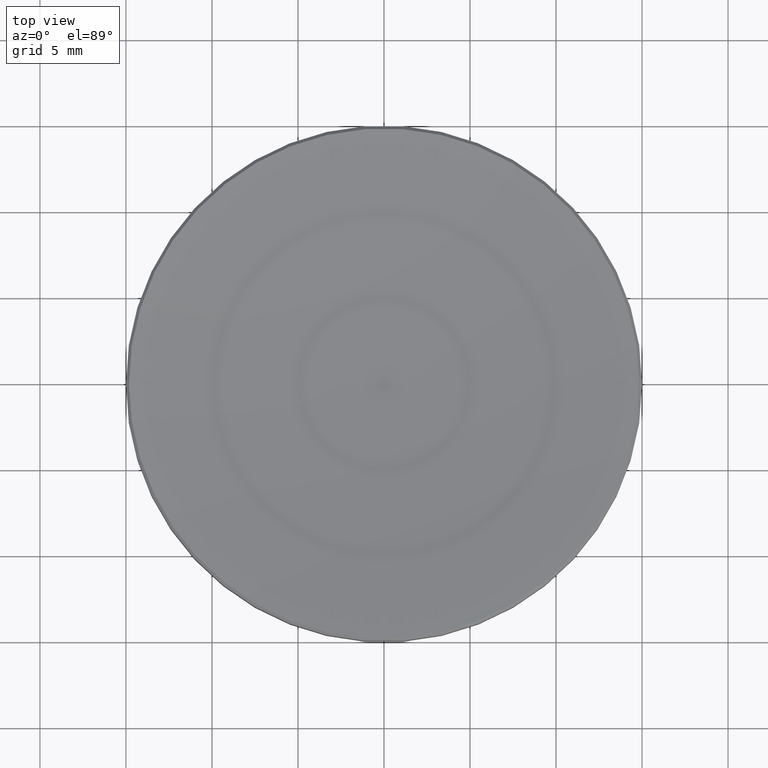
[diagram: clean part render]
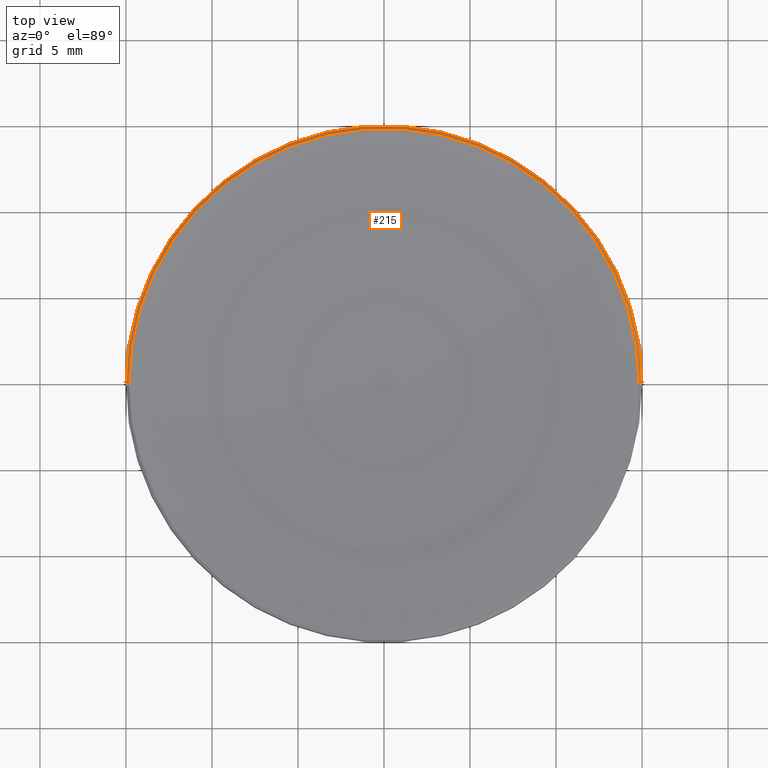
[diagram: same view with one face highlighted and labeled with its STEP entity id]
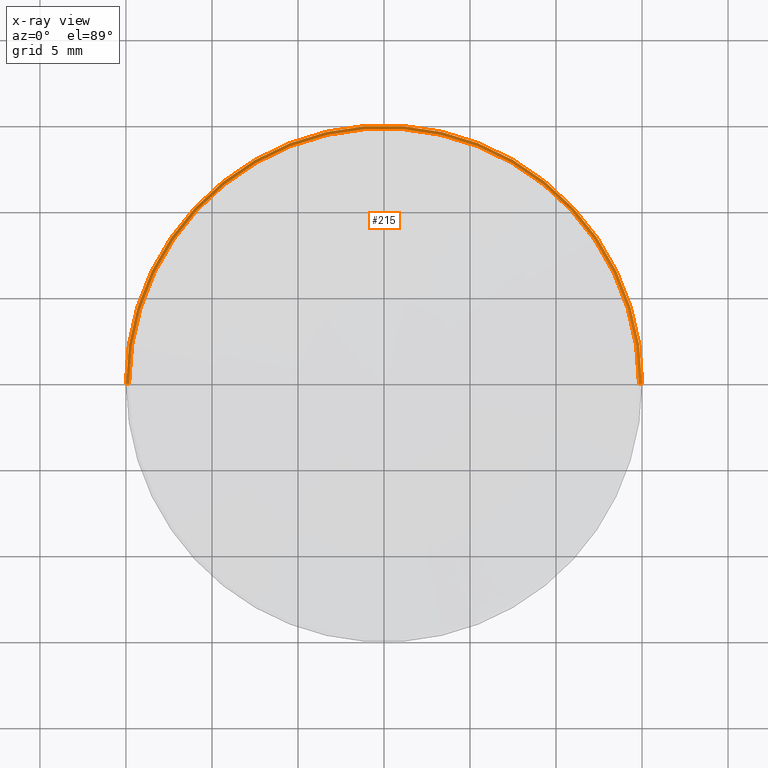
[diagram: x-ray of the same camera — body ghosted, the highlighted face saturated]
A machine part, top view. The second image highlights one B-rep face of the part: STEP entity #215.
The next image is the same camera in x-ray: the body ghosted, the highlighted face saturated — about 0% of this face is hidden behind the body in this view.
In plain terms, the highlighted conical surface has half-angle 45 deg.
Its self-contained STEP definition (entity closure, byte-faithful):
#6 = VERTEX_POINT ( 'NONE', #118 ) ;
#7 = VECTOR ( 'NONE', #205, 1000.000000000000000 ) ;
#8 = DIRECTION ( 'NONE',  ( -0.000000000000000000, -0.000000000000000000, 1.000000000000000000 ) ) ;
#11 = EDGE_CURVE ( 'NONE', #6, #137, #81, .T. ) ;
#16 = AXIS2_PLACEMENT_3D ( 'NONE', #214, #234, #45 ) ;
#29 = DIRECTION ( 'NONE',  ( 0.000000000000000000, 0.000000000000000000, -1.000000000000000000 ) ) ;
#32 = VECTOR ( 'NONE', #40, 1000.000000000000000 ) ;
#36 = CARTESIAN_POINT ( 'NONE',  ( -15.00000000000000000, 1.836970198721029589E-15, 3.399999999999972378 ) ) ;
#40 = DIRECTION ( 'NONE',  ( 0.7071067811864948371, 8.659560562354288211E-17, -0.7071067811866003083 ) ) ;
#43 = ORIENTED_EDGE ( 'NONE', *, *, #99, .F. ) ;
#45 = DIRECTION ( 'NONE',  ( -1.000000000000000000, 0.000000000000000000, 0.000000000000000000 ) ) ;
#57 = ORIENTED_EDGE ( 'NONE', *, *, #11, .T. ) ;
#67 = CARTESIAN_POINT ( 'NONE',  ( 0.000000000000000000, 0.000000000000000000, 3.574481109687874358 ) ) ;
#81 = LINE ( 'NONE', #163, #32 ) ;
#87 = CARTESIAN_POINT ( 'NONE',  ( -14.82551889031213577, 1.815602425471937729E-15, 3.574481109687874358 ) ) ;
#99 = EDGE_CURVE ( 'NONE', #224, #252, #227, .T. ) ;
#108 = FACE_OUTER_BOUND ( 'NONE', #263, .T. ) ;
#117 = CARTESIAN_POINT ( 'NONE',  ( -14.82551889031212333, 0.000000000000000000, 3.574481109687874358 ) ) ;
#118 = CARTESIAN_POINT ( 'NONE',  ( 14.82551889031213577, 0.000000000000000000, 3.574481109687874358 ) ) ;
#133 = EDGE_CURVE ( 'NONE', #252, #137, #240, .T. ) ;
#137 = VERTEX_POINT ( 'NONE', #190 ) ;
#157 = ORIENTED_EDGE ( 'NONE', *, *, #133, .F. ) ;
#158 = AXIS2_PLACEMENT_3D ( 'NONE', #67, #29, #192 ) ;
#163 = CARTESIAN_POINT ( 'NONE',  ( 14.82551889031212333, 1.815602425471936151E-15, 3.574481109687874358 ) ) ;
#190 = CARTESIAN_POINT ( 'NONE',  ( 15.00000000000000000, 0.000000000000000000, 3.399999999999972378 ) ) ;
#191 = EDGE_CURVE ( 'NONE', #6, #224, #194, .T. ) ;
#192 = DIRECTION ( 'NONE',  ( -1.000000000000000000, 0.000000000000000000, 0.000000000000000000 ) ) ;
#194 = CIRCLE ( 'NONE', #262, 14.82551889031212333 ) ;
#202 = ORIENTED_EDGE ( 'NONE', *, *, #191, .F. ) ;
#205 = DIRECTION ( 'NONE',  ( -0.7071067811864948371, 0.000000000000000000, -0.7071067811866003083 ) ) ;
#207 = CARTESIAN_POINT ( 'NONE',  ( 0.000000000000000000, 0.000000000000000000, 3.574481109687874358 ) ) ;
#208 = CONICAL_SURFACE ( 'NONE', #158, 14.82551889031212333, 0.7853981633973737830 ) ;
#214 = CARTESIAN_POINT ( 'NONE',  ( 0.000000000000000000, 0.000000000000000000, 3.399999999999972378 ) ) ;
#215 = ADVANCED_FACE ( 'NONE', ( #108 ), #208, .T. ) ;
#224 = VERTEX_POINT ( 'NONE', #87 ) ;
#227 = LINE ( 'NONE', #117, #7 ) ;
#231 = DIRECTION ( 'NONE',  ( 1.000000000000000000, 0.000000000000000000, 0.000000000000000000 ) ) ;
#234 = DIRECTION ( 'NONE',  ( 0.000000000000000000, 0.000000000000000000, -1.000000000000000000 ) ) ;
#240 = CIRCLE ( 'NONE', #16, 15.00000000000000000 ) ;
#252 = VERTEX_POINT ( 'NONE', #36 ) ;
#262 = AXIS2_PLACEMENT_3D ( 'NONE', #207, #8, #231 ) ;
#263 = EDGE_LOOP ( 'NONE', ( #202, #57, #157, #43 ) ) ;